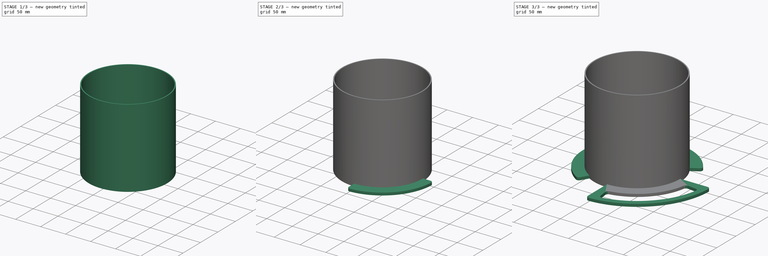
[diagram: build sequence overview — one tinted view per stage of 3, left to right]
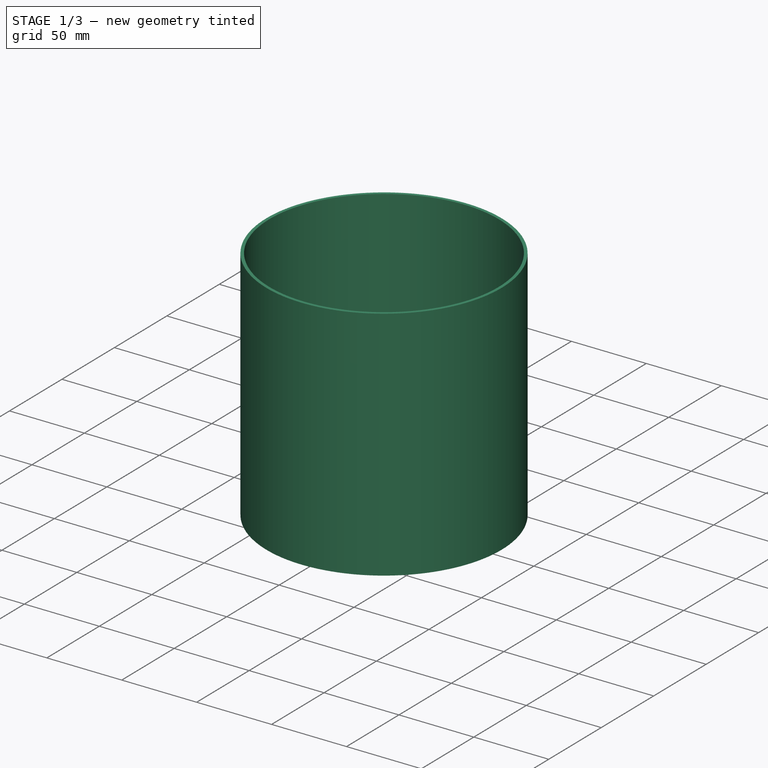
[diagram: stage 1 of 3 — iso view after this stage's code; geometry added in this stage tinted green]
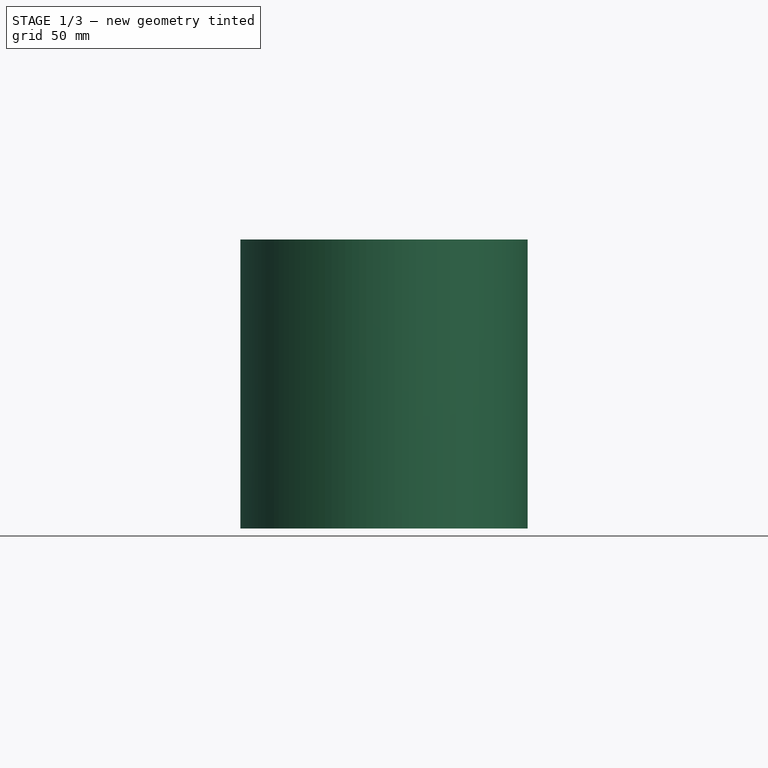
[diagram: stage 1 of 3 — front view after this stage's code; geometry added in this stage tinted green]
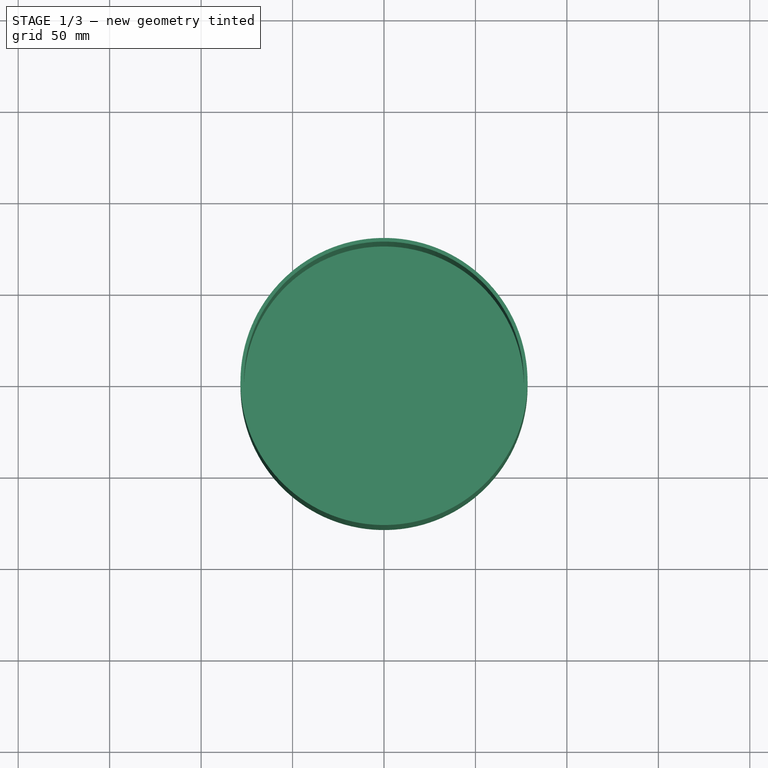
[diagram: stage 1 of 3 — top view after this stage's code; geometry added in this stage tinted green]
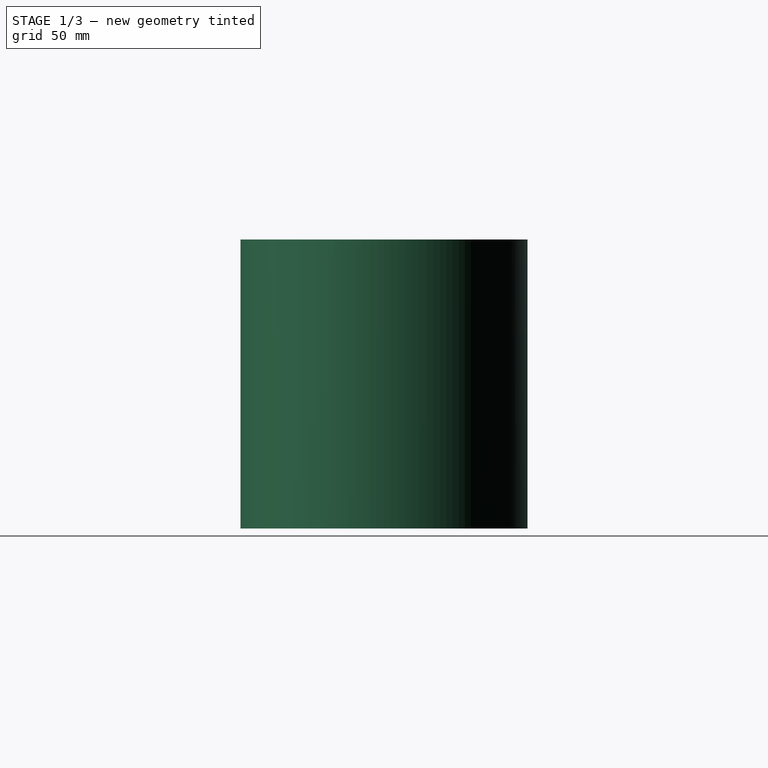
[diagram: stage 1 of 3 — right view after this stage's code; geometry added in this stage tinted green]
FCSTD DOCUMENT  (FreeCAD 1.0R39319 (Git))
Label: ball_caliper
License: All rights reserved
LicenseURL: https://en.wikipedia.org/wiki/All_rights_reserved
objects: Sketcher::SketchObject×4, PartDesign::Pad×4, PartDesign::PolarPattern×1, PartDesign::Body×1
note: 23 computed .brp shape members not serialized (recipe doc carries the construction recipe); baked Part::Feature solids carry a one-line shape summary decoded from their .brp

FEATURE [Sketcher::SketchObject] Sketch
  ArcFitTolerance = 1e-06
  AttachmentSupport = -> [XY_Plane]
  FullyConstrained = true
  MakeInternals = false
  MapMode = 5
  sketch-geometry (2):
    g0: Circle CenterX=0 CenterY=0 CenterZ=0 NormalX=0 NormalY=0 NormalZ=1 AngleXU=0 Radius=76.5
    g1: Circle CenterX=0 CenterY=0 CenterZ=0 NormalX=0 NormalY=0 NormalZ=1 AngleXU=0 Radius=78.5
  constraints (4):
    c: Coincident(g0,g-1)
    c: Diameter(g0) = 153
    c: Coincident(g1,g0)
    c: Diameter(g1) = 157
FEATURE [PartDesign::Pad] Pad  label="cylinder_pocket"
  Direction = (0,0,1)
  Length = 153
  Length2 = 10
  Profile = -> Sketch
  ReferenceAxis = -> Sketch [N_Axis]
  Refine = true
  Suppressed = false
  Type = 0
FEATURE [Sketcher::SketchObject] Sketch001
  ArcFitTolerance = 1e-06
  AttachmentSupport = -> [Pad]
  FullyConstrained = true
  MakeInternals = false
  MapMode = 5
  Placement = pos=(0,0,0) rot=(1,0,0;3.14159rad)
  sketch-geometry (1):
    g0: Circle CenterX=0 CenterY=0 CenterZ=0 NormalX=0 NormalY=0 NormalZ=1 AngleXU=0 Radius=78.5
  constraints (2):
    c: Coincident(g0,g-1)
    c: Diameter(g0) = 157
FEATURE [PartDesign::Pad] Pad001  label="bottom"
  BaseFeature = -> Pad
  Direction = (0,0,-1)
  Length = 5
  Length2 = 10
  Profile = -> Sketch001
  ReferenceAxis = -> Sketch001 [N_Axis]
  Refine = true
  Suppressed = false
  Type = 0
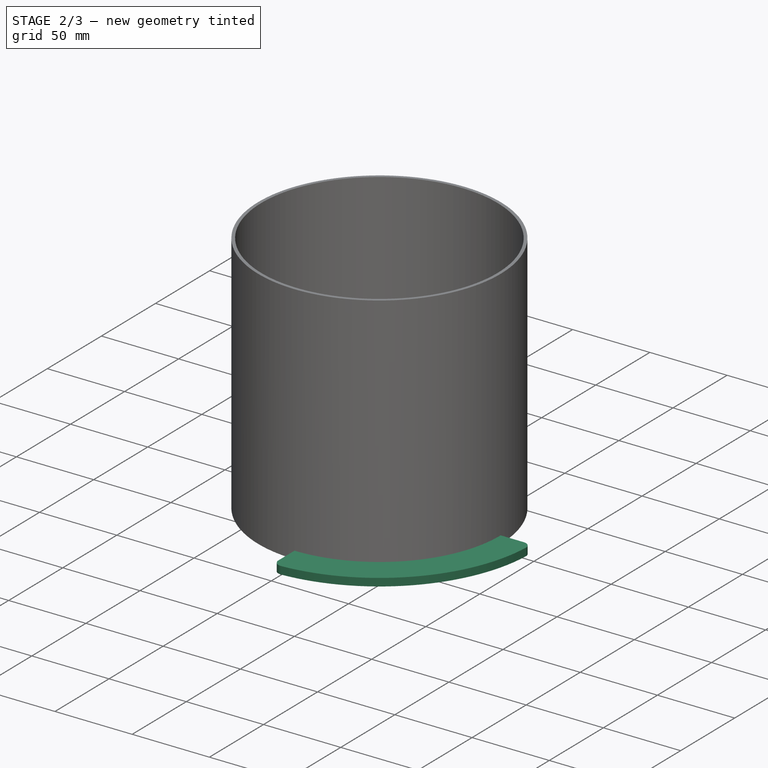
[diagram: stage 2 of 3 — iso view after this stage's code; geometry added in this stage tinted green]
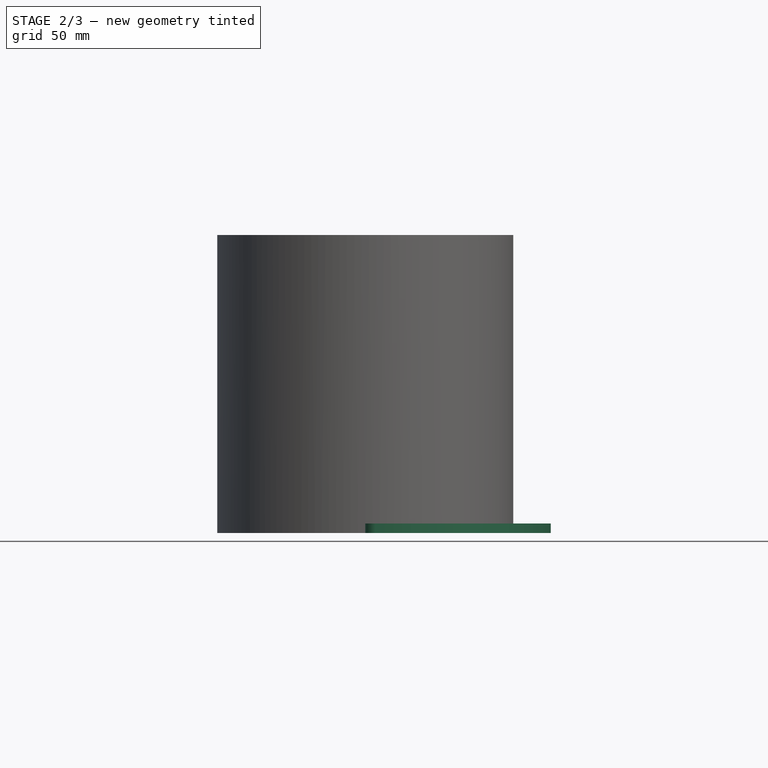
[diagram: stage 2 of 3 — front view after this stage's code; geometry added in this stage tinted green]
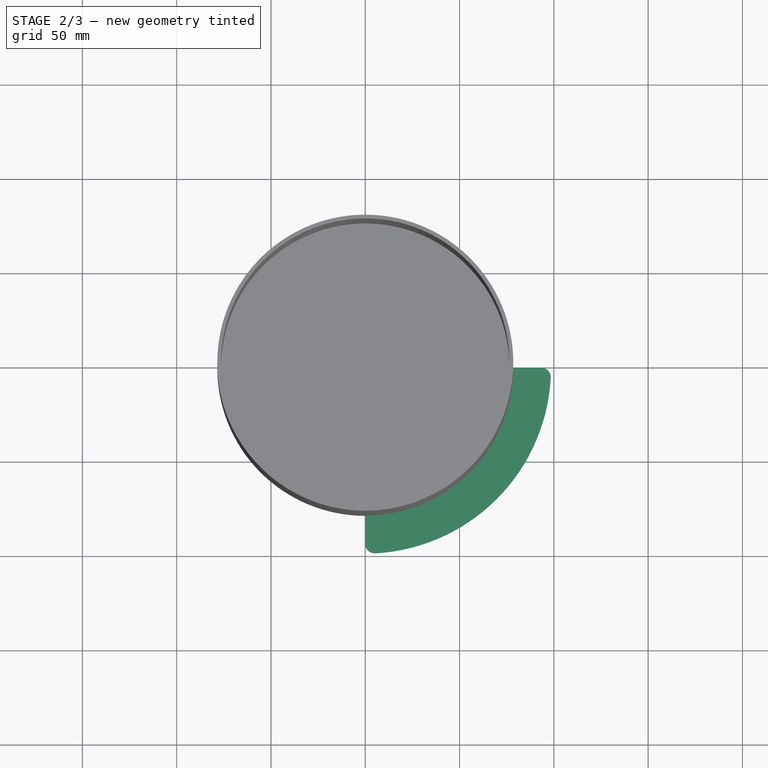
[diagram: stage 2 of 3 — top view after this stage's code; geometry added in this stage tinted green]
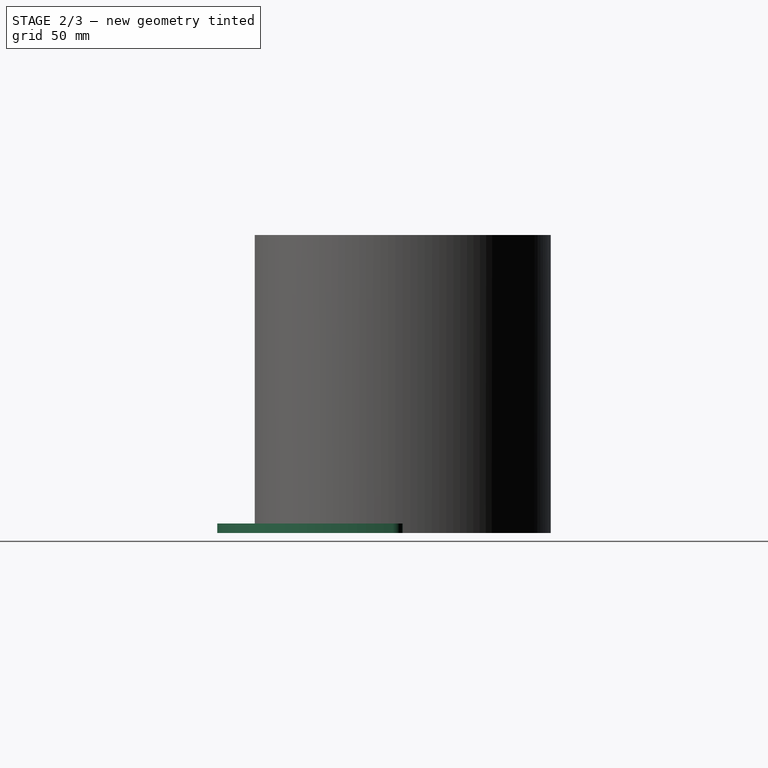
[diagram: stage 2 of 3 — right view after this stage's code; geometry added in this stage tinted green]
FEATURE [Sketcher::SketchObject] Sketch002
  ArcFitTolerance = 1e-06
  AttachmentSupport = -> [Pad001]
  FullyConstrained = true
  MakeInternals = false
  MapMode = 5
  Placement = pos=(0,0,-5) rot=(1,0,0;3.14159rad)
  sketch-geometry (6):
    g0: ArcOfCircle CenterX=0 CenterY=0 CenterZ=0 NormalX=0 NormalY=0 NormalZ=1 AngleXU=0 Radius=78.5 StartAngle=0 EndAngle=1.5708
    g1: ArcOfCircle CenterX=0 CenterY=0 CenterZ=0 NormalX=0 NormalY=0 NormalZ=1 AngleXU=0 Radius=98.5 StartAngle=0.0535015 EndAngle=1.51729
    g2: LineSegment StartX=4.8e-15 StartY=78.5 StartZ=0 EndX=4.8e-15 EndY=93.3662 EndZ=0
    g3: LineSegment StartX=78.5 StartY=0 StartZ=0 EndX=93.3662 EndY=0 EndZ=0
    g4: ArcOfCircle CenterX=93.3662 CenterY=5 CenterZ=0 NormalX=0 NormalY=0 NormalZ=1 AngleXU=0 Radius=5 StartAngle=4.71239 EndAngle=6.33669
    g5: ArcOfCircle CenterX=5 CenterY=93.3662 CenterZ=0 NormalX=0 NormalY=0 NormalZ=1 AngleXU=0 Radius=5 StartAngle=1.51729 EndAngle=3.14159
  constraints (16):
    c: Coincident(g0,g-1)
    c: PointOnObject(g0,g-2)
    c: PointOnObject(g0,g-1)
    c: Coincident(g1,g0)
    c: Coincident(g2,g0)
    c: Coincident(g3,g0)
    c: Tangent(g3,g4) = -1.5708
    c: Tangent(g1,g4) = -1.5708
    c: Tangent(g2,g5) = 1.5708
    c: Tangent(g1,g5) = -1.5708
    c: Equal(g5,g4)
    c: Radius(g5) = 5
    c: Radius(g1) = 98.5
    c: Radius(g0) = 78.5
    c: Vertical(g2)
    c: Horizontal(g3)
FEATURE [PartDesign::Pad] Pad002  label="fan"
  BaseFeature = -> Pad001
  Direction = (0,0,-1)
  Length = 5
  Length2 = 10
  Profile = -> Sketch002
  ReferenceAxis = -> Sketch002 [N_Axis]
  Refine = true
  Reversed = true
  Suppressed = false
  Type = 0
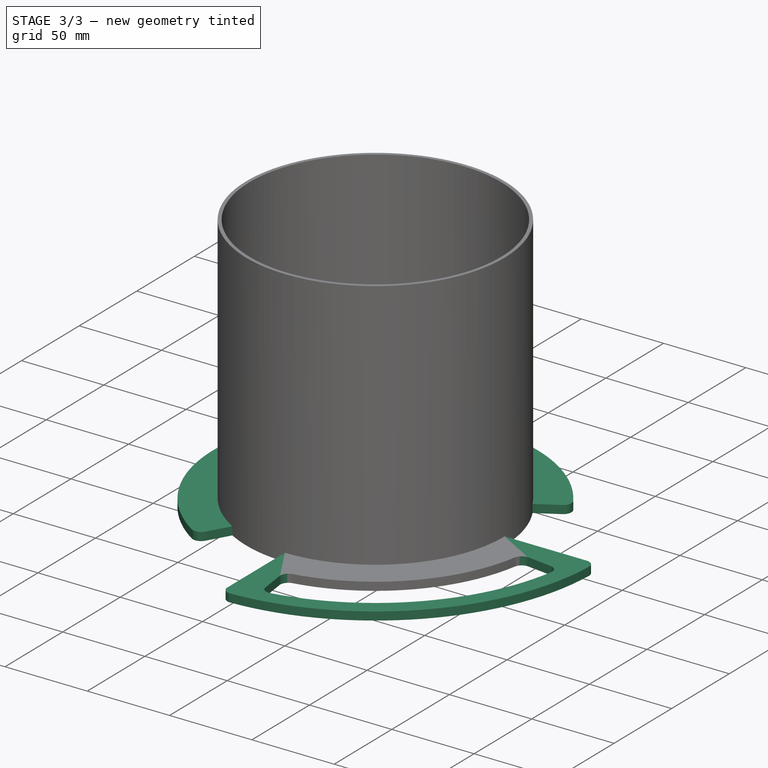
[diagram: stage 3 of 3 — iso view after this stage's code; geometry added in this stage tinted green]
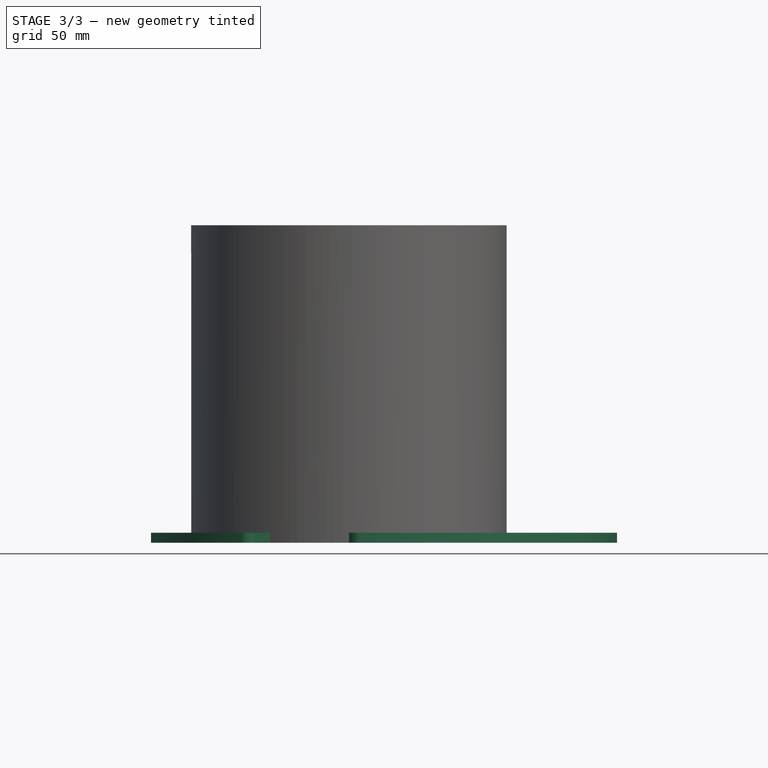
[diagram: stage 3 of 3 — front view after this stage's code; geometry added in this stage tinted green]
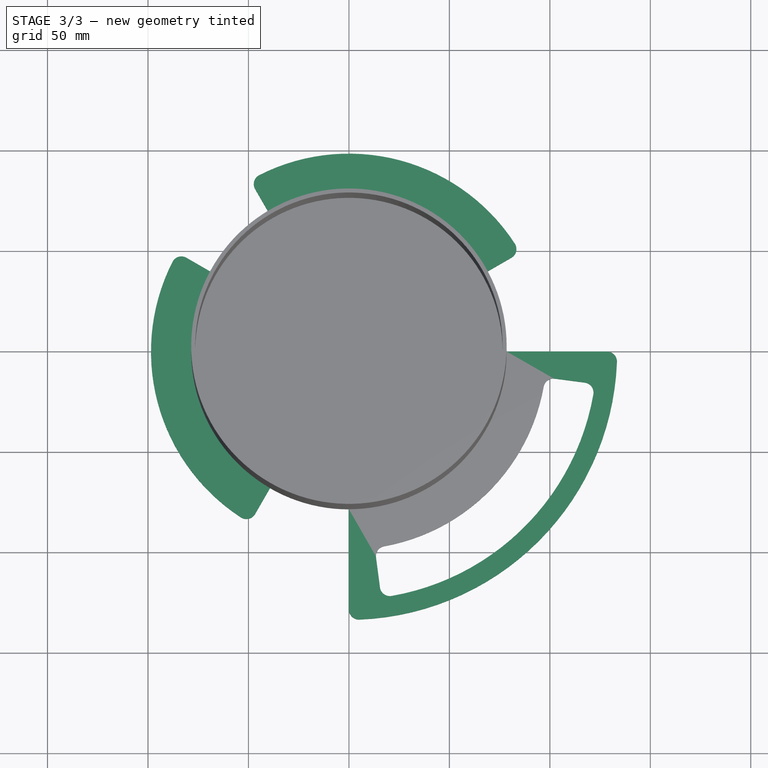
[diagram: stage 3 of 3 — top view after this stage's code; geometry added in this stage tinted green]
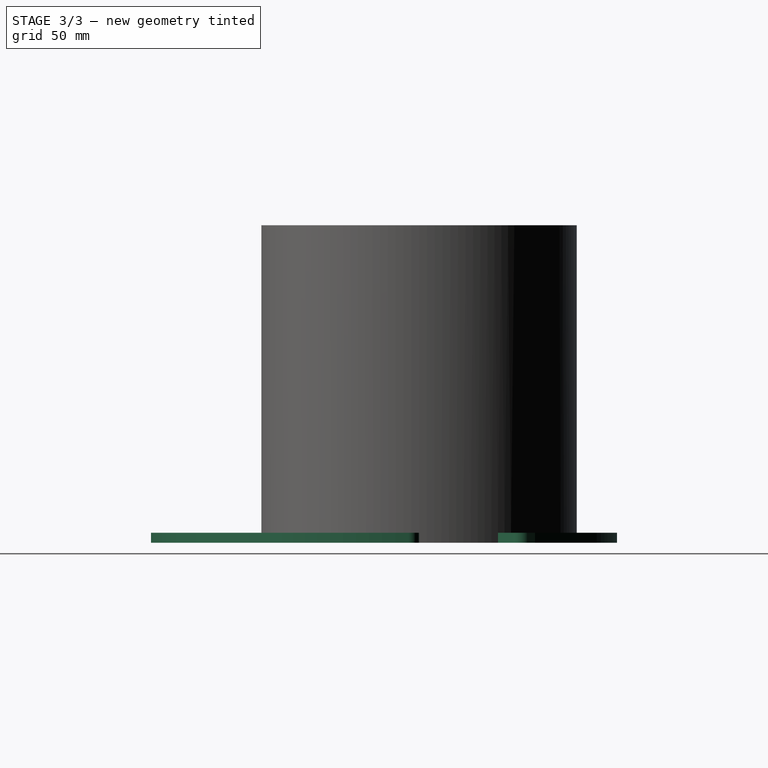
[diagram: stage 3 of 3 — right view after this stage's code; geometry added in this stage tinted green]
FEATURE [PartDesign::PolarPattern] PolarPattern
  Angle = 360
  Axis = -> Sketch002 [N_Axis]
  BaseFeature = -> Pad002
  Mode = 0
  Occurrences = 3
  Offset = 120
  Originals = -> [Pad002]
  Refine = true
  Suppressed = false
  TransformMode = 0
FEATURE [Sketcher::SketchObject] Sketch003
  ArcFitTolerance = 1e-06
  AttachmentSupport = -> [PolarPattern]
  FullyConstrained = true
  MakeInternals = false
  MapMode = 5
  Placement = pos=(0,0,-5) rot=(1,0,0;3.14159rad)
  sketch-geometry (15):
    g0: ArcOfCircle CenterX=0 CenterY=0 CenterZ=0 NormalX=0 NormalY=0 NormalZ=1 AngleXU=0 Radius=133.5 StartAngle=0.0389203 EndAngle=1.53188
    g1: LineSegment StartX=0 StartY=0 StartZ=0 EndX=0 EndY=128.403 EndZ=0
    g2: LineSegment StartX=0 StartY=0 StartZ=0 EndX=128.403 EndY=0 EndZ=0
    g3: ArcOfCircle CenterX=128.403 CenterY=5 CenterZ=0 NormalX=0 NormalY=0 NormalZ=1 AngleXU=0 Radius=5 StartAngle=4.71239 EndAngle=6.32211
    g4: ArcOfCircle CenterX=5 CenterY=128.403 CenterZ=0 NormalX=0 NormalY=0 NormalZ=1 AngleXU=0 Radius=5 StartAngle=1.53188 EndAngle=3.14159
    g5: ArcOfCircle CenterX=0 CenterY=0 CenterZ=0 NormalX=0 NormalY=0 NormalZ=1 AngleXU=0 Radius=123.5 StartAngle=0.173106 EndAngle=1.39769
    g6: ArcOfCircle CenterX=0 CenterY=0 CenterZ=0 NormalX=0 NormalY=0 NormalZ=1 AngleXU=0 Radius=98.5 StartAngle=0.179228 EndAngle=1.39157
    g7: LineSegment [constr] StartX=0 StartY=0 StartZ=0 EndX=15.6631 EndY=118.973 EndZ=0
    g8: LineSegment [constr] StartX=0 StartY=0 StartZ=0 EndX=118.973 EndY=15.6631 EndZ=0
    g9: LineSegment StartX=102.495 StartY=13.4937 StartZ=0 EndX=117.382 EndY=15.4536 EndZ=0
    g10: LineSegment StartX=13.4937 StartY=102.495 StartZ=0 EndX=15.4536 EndY=117.382 EndZ=0
    g11: ArcOfCircle CenterX=18.4509 CenterY=101.842 CenterZ=0 NormalX=0 NormalY=0 NormalZ=1 AngleXU=0 Radius=5 StartAngle=3.01069 EndAngle=4.53316
    g12: ArcOfCircle CenterX=20.4108 CenterY=116.729 CenterZ=0 NormalX=0 NormalY=0 NormalZ=1 AngleXU=0 Radius=5 StartAngle=1.39769 EndAngle=3.01069
    g13: ArcOfCircle CenterX=116.729 CenterY=20.4108 CenterZ=0 NormalX=0 NormalY=0 NormalZ=1 AngleXU=0 Radius=5 StartAngle=4.84329 EndAngle=6.45629
    g14: ArcOfCircle CenterX=101.842 CenterY=18.4509 CenterZ=0 NormalX=0 NormalY=0 NormalZ=1 AngleXU=0 Radius=5 StartAngle=3.32082 EndAngle=4.84329
  constraints (38):
    c: Coincident(g0,g-1)
    c: Coincident(g1,g0)
    c: Coincident(g2,g0)
    c: Radius(g0) = 133.5
    c: Tangent(g2,g3) = -1.5708
    c: Tangent(g0,g3) = -1.5708
    c: Tangent(g1,g4) = 1.5708
    c: Tangent(g0,g4) = -1.5708
    c: Equal(g4,g3)
    c: Radius(g4) = 5
    c: Horizontal(g2)
    c: Vertical(g1)
    c: Coincident(g5,g0)
    c: Coincident(g6,g0)
    c: Coincident(g7,g0)
    c: Coincident(g8,g0)
    c: Angle(g8,g7) = 1.309
    c: Angle(g2,g8) = 0.1309
    c: Distance(g8) = 120
    c: Radius(g6) = 98.5
    c: Tangent(g10,g11) = 1.5708
    c: Tangent(g6,g11) = 1.5708
    c: Tangent(g5,g12) = -1.5708
    c: Tangent(g10,g12) = 1.5708
    c: Tangent(g5,g13) = -1.5708
    c: Tangent(g9,g13) = -1.5708
    c: Tangent(g6,g14) = 1.5708
    c: Tangent(g9,g14) = -1.5708
    c: Equal(g13,g14)
    c: Equal(g13,g11)
    c: Equal(g13,g12)
    c: Radius(g13) = 5
    c: Radius(g5) = 123.5
    c: Distance(g7) = 120
    c: PointOnObject(g10,g7)
    c: PointOnObject(g10,g7)
    c: PointOnObject(g9,g8)
    c: PointOnObject(g9,g8)
FEATURE [PartDesign::Pad] Pad003  label="handle"
  BaseFeature = -> PolarPattern
  Direction = (0,0,-1)
  Length = 5
  Length2 = 10
  Profile = -> Sketch003
  ReferenceAxis = -> Sketch003 [N_Axis]
  Refine = true
  Reversed = true
  Suppressed = false
  Type = 0
FEATURE [PartDesign::Body] Body
  AllowCompound = false
  Group = -> [Sketch,Pad,Sketch001,Pad001,Sketch002,Pad002,PolarPattern,Sketch003,Pad003]
  Origin = -> Origin
  Tip = -> Pad003
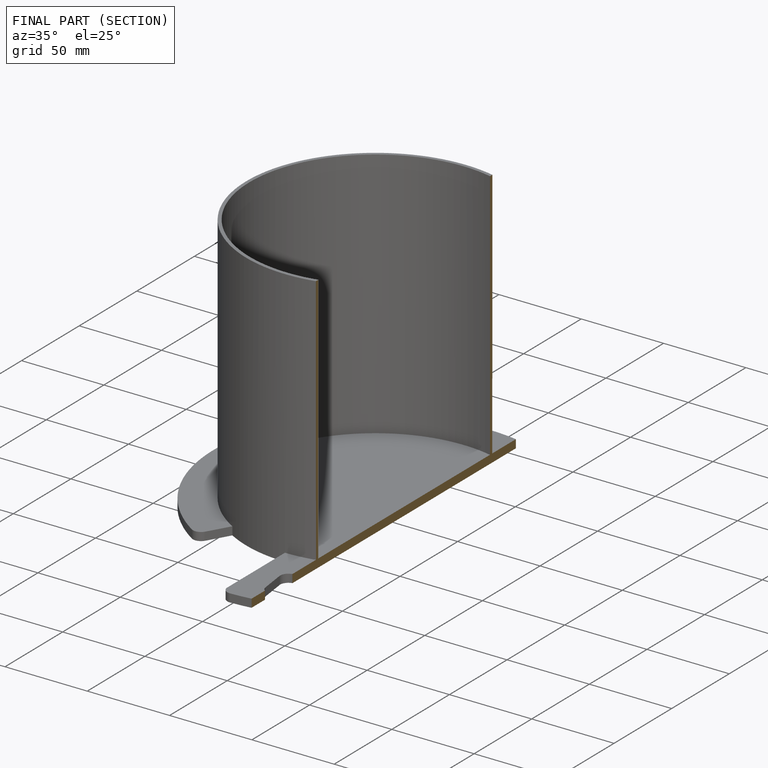
[diagram: finished part — half-section view (interior)]
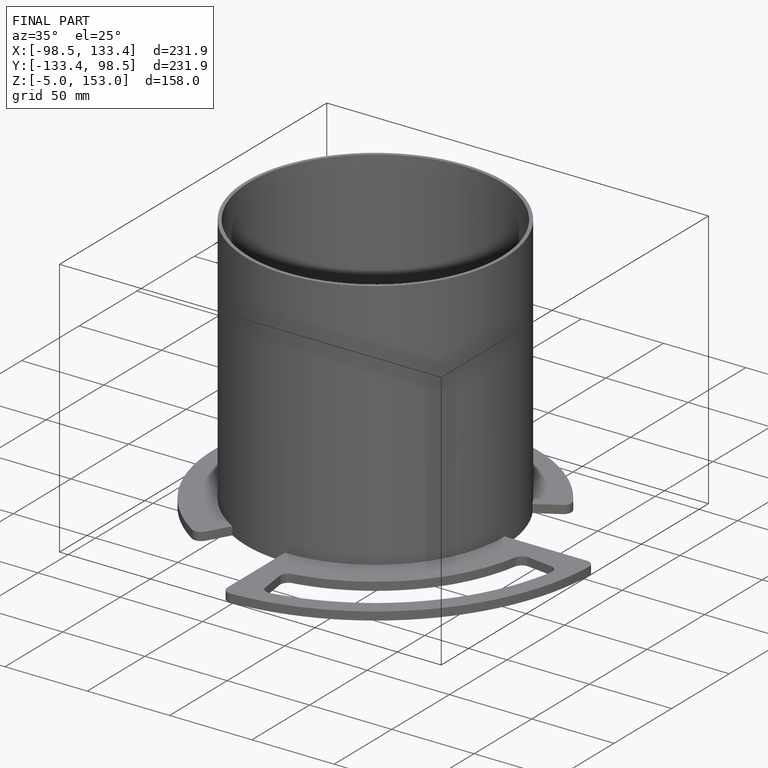
[diagram: finished part — iso view with bounding-box wireframe]
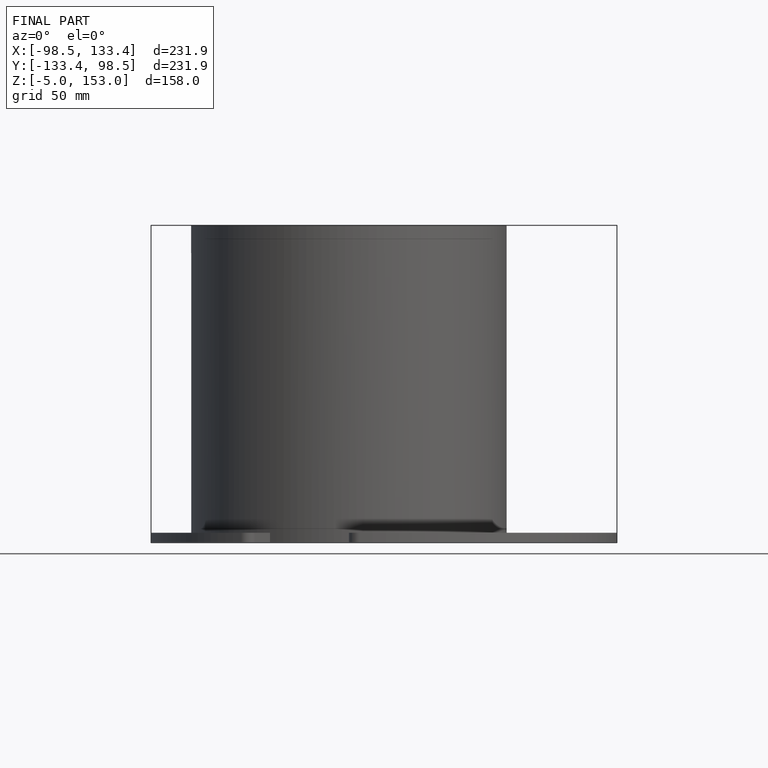
[diagram: finished part — front view with bounding-box wireframe]
